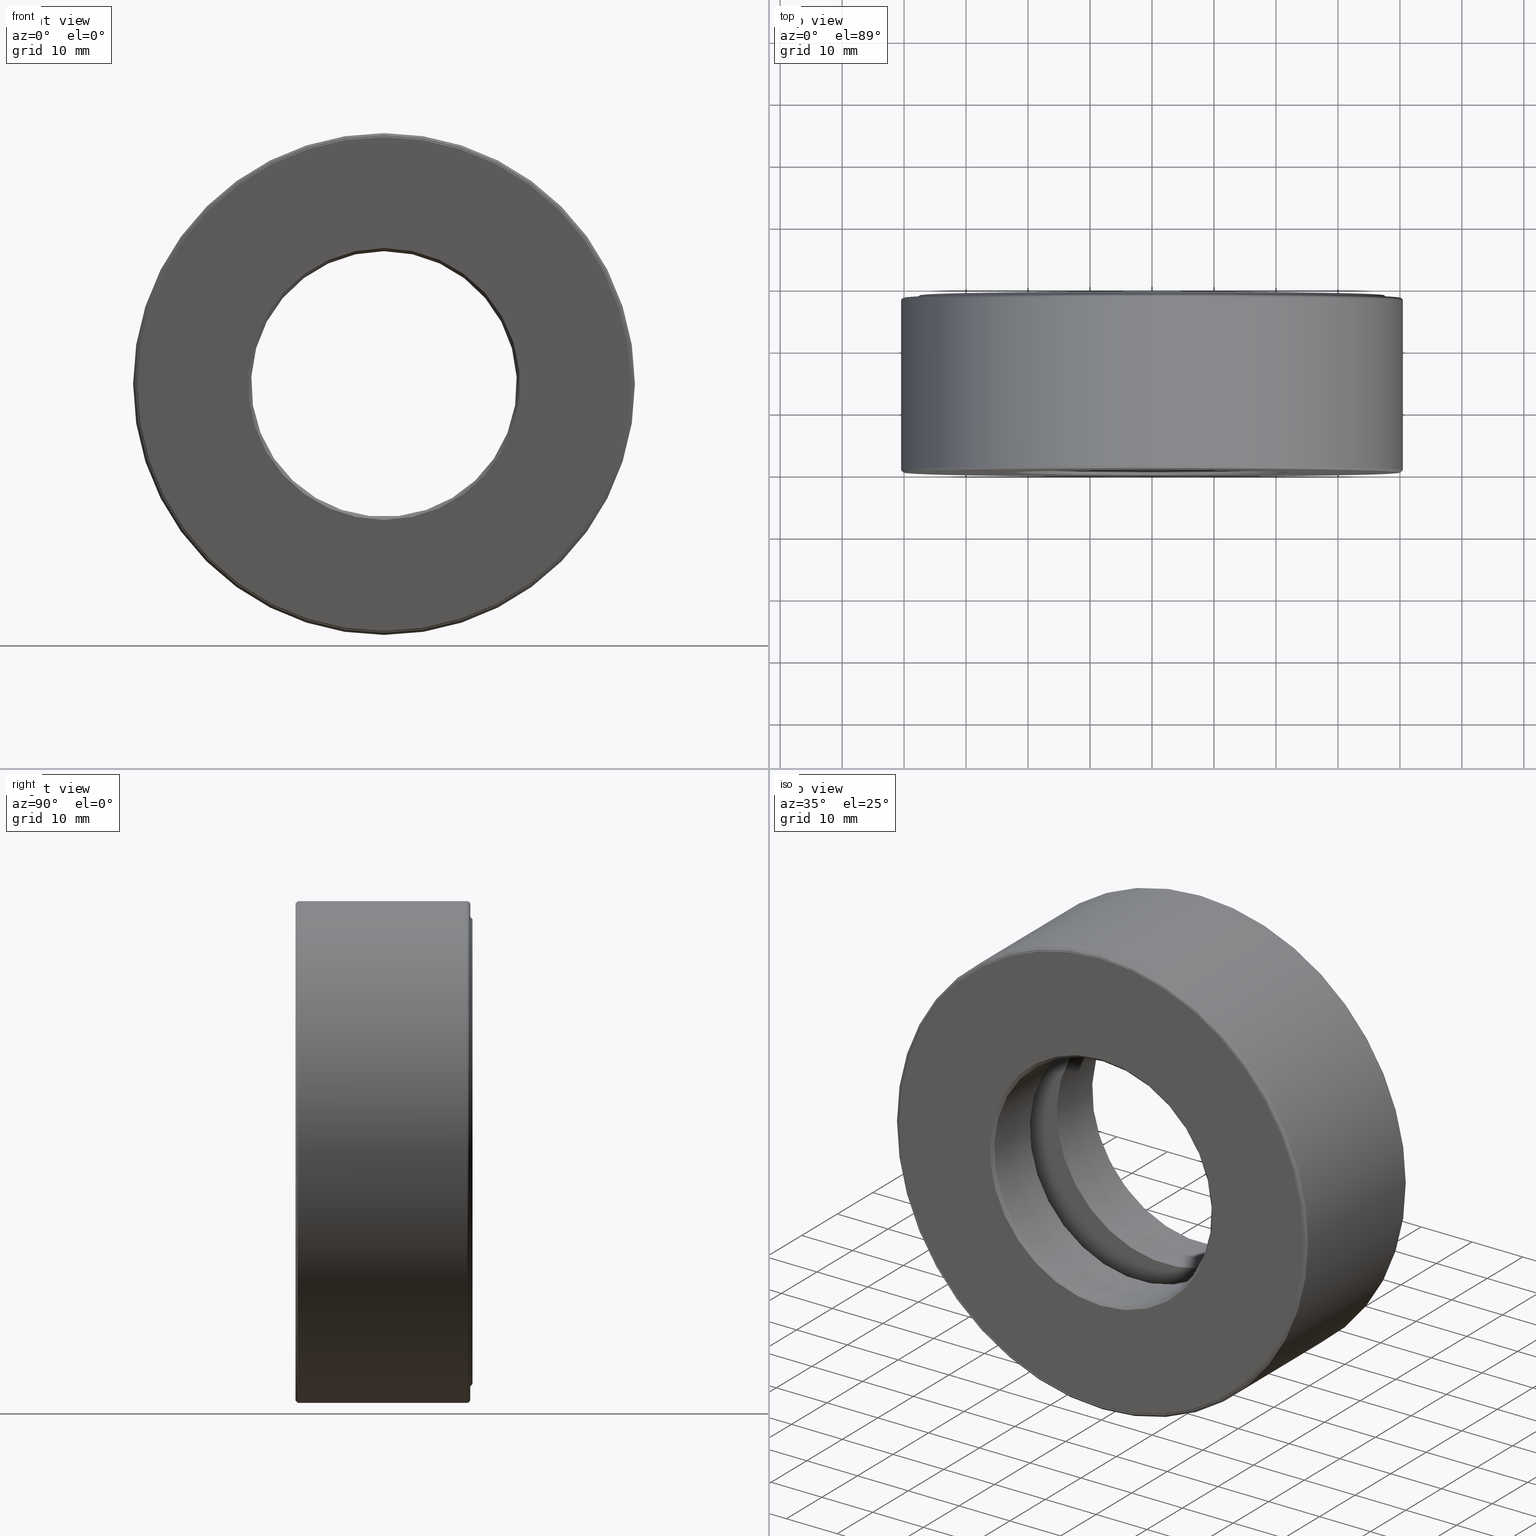
[diagram: canonical four-view strip — front | top / right | iso, engineering-drawing reading convention]
A machine part, canonical four-view strip (front | top / right | iso — engineering-drawing reading convention). The complete STEP part file that produces these views, byte-faithful:
ISO-10303-21;
HEADER;
FILE_DESCRIPTION (( 'STEP AP203' ),
    '1' );
FILE_NAME ('T-100-32.step',
    '2016-06-29T18:27:31',
    ( '' ),
    ( '' ),
    'SwSTEP 2.0',
    'SolidWorks 2016',
    '' );
FILE_SCHEMA (( 'CONFIG_CONTROL_DESIGN' ));
ENDSEC;

DATA;
#1 = DESIGN_CONTEXT ( 'detailed design', #104, 'design' ) ;
#2 = EDGE_LOOP ( 'NONE', ( #549 ) ) ;
#3 = EDGE_LOOP ( 'NONE', ( #139 ) ) ;
#4 = PLANE ( 'NONE',  #357 ) ;
#5 = CC_DESIGN_PERSON_AND_ORGANIZATION_ASSIGNMENT ( #410, #484, ( #561 ) ) ;
#6 = CIRCLE ( 'NONE', #118, 1.513749999999999900 ) ;
#7 = AXIS2_PLACEMENT_3D ( 'NONE', #240, #529, #338 ) ;
#8 = CARTESIAN_POINT ( 'NONE',  ( 0.0000000000000000000, -6.722907171908147400E-017, 0.0000000000000000000 ) ) ;
#9 = EDGE_LOOP ( 'NONE', ( #263 ) ) ;
#10 = CONICAL_SURFACE ( 'NONE', #541, 0.8437500000000000000, 0.7853981633974482800 ) ;
#11 = COORDINATED_UNIVERSAL_TIME_OFFSET ( 5, 0, .BEHIND. ) ;
#12 =( LENGTH_UNIT ( ) NAMED_UNIT ( * ) SI_UNIT ( $, .METRE. ) );
#13 = EDGE_CURVE ( 'NONE', #544, #544, #435, .T. ) ;
#14 = CARTESIAN_POINT ( 'NONE',  ( -4.774946175366597000E-016, 0.4125000000000000300, 0.0000000000000000000 ) ) ;
#15 =( NAMED_UNIT ( * ) PLANE_ANGLE_UNIT ( ) SI_UNIT ( $, .RADIAN. ) );
#16 = DIRECTION ( 'NONE',  ( -0.0000000000000000000, 1.000000000000000000, -0.0000000000000000000 ) ) ;
#17 = UNCERTAINTY_MEASURE_WITH_UNIT (LENGTH_MEASURE( 1.000000000000000100E-005 ), #439, 'distance_accuracy_value', 'NONE');
#18 = ORIENTED_EDGE ( 'NONE', *, *, #335, .T. ) ;
#19 =( GEOMETRIC_REPRESENTATION_CONTEXT ( 3 ) GLOBAL_UNCERTAINTY_ASSIGNED_CONTEXT ( ( #17 ) ) GLOBAL_UNIT_ASSIGNED_CONTEXT ( ( #439, #15, #432 ) ) REPRESENTATION_CONTEXT ( 'NONE', 'WORKASPACE' ) );
#20 = DIRECTION ( 'NONE',  ( 1.000000000000000000, 0.0000000000000000000, 0.0000000000000000000 ) ) ;
#21 = DIRECTION ( 'NONE',  ( 0.0000000000000000000, 0.0000000000000000000, 1.000000000000000000 ) ) ;
#22 = PERSON_AND_ORGANIZATION ( #324, #581 ) ;
#23 = DIRECTION ( 'NONE',  ( -0.0000000000000000000, 1.000000000000000000, -0.0000000000000000000 ) ) ;
#24 = EDGE_CURVE ( 'NONE', #386, #386, #399, .T. ) ;
#25 = CARTESIAN_POINT ( 'NONE',  ( 0.0000000000000000000, 1.109999999999999900, 0.0000000000000000000 ) ) ;
#26 = DIRECTION ( 'NONE',  ( -0.0000000000000000000, 1.000000000000000000, 0.0000000000000000000 ) ) ;
#27 = EDGE_LOOP ( 'NONE', ( #524 ) ) ;
#28 = DIRECTION ( 'NONE',  ( 0.0000000000000000000, 0.0000000000000000000, -1.000000000000000000 ) ) ;
#29 = PERSON_AND_ORGANIZATION ( #324, #581 ) ;
#30 = CARTESIAN_POINT ( 'NONE',  ( 0.0000000000000000000, -6.829619984160658000E-017, 0.0000000000000000000 ) ) ;
#31 = CARTESIAN_POINT ( 'NONE',  ( 0.0000000000000000000, 1.125000000000000000, 0.0000000000000000000 ) ) ;
#32 = AXIS2_PLACEMENT_3D ( 'NONE', #185, #383, #519 ) ;
#33 = ADVANCED_FACE ( 'NONE', ( #425, #162 ), #494, .F. ) ;
#34 = EDGE_LOOP ( 'NONE', ( #147 ) ) ;
#35 = VERTEX_POINT ( 'NONE', #575 ) ;
#36 = CARTESIAN_POINT ( 'NONE',  ( 0.0000000000000000000, 0.0000000000000000000, 0.0000000000000000000 ) ) ;
#37 = DATE_AND_TIME ( #454, #66 ) ;
#38 = ADVANCED_FACE ( 'NONE', ( ), #235, .T. ) ;
#39 = CARTESIAN_POINT ( 'NONE',  ( 0.0000000000000000000, -6.829619984160658000E-017, 0.0000000000000000000 ) ) ;
#40 = DIRECTION ( 'NONE',  ( 0.0000000000000000000, 0.0000000000000000000, 1.000000000000000000 ) ) ;
#41 = ADVANCED_FACE ( 'NONE', ( #371, #269 ), #203, .F. ) ;
#42 = EDGE_LOOP ( 'NONE', ( #234 ) ) ;
#43 = VERTEX_POINT ( 'NONE', #384 ) ;
#44 = FACE_OUTER_BOUND ( 'NONE', #9, .T. ) ;
#45 = ADVANCED_FACE ( 'NONE', ( #321, #538 ), #303, .F. ) ;
#46 = AXIS2_PLACEMENT_3D ( 'NONE', #293, #16, #21 ) ;
#47 = CARTESIAN_POINT ( 'NONE',  ( 0.0000000000000000000, 0.4125000000000002000, 0.0000000000000000000 ) ) ;
#48 = EDGE_CURVE ( 'NONE', #156, #156, #177, .T. ) ;
#49 = CLOSED_SHELL ( 'NONE', ( #174 ) ) ;
#50 = CIRCLE ( 'NONE', #489, 1.566749999999999600 ) ;
#51 = CALENDAR_DATE ( 2016, 29, 6 ) ;
#52 = DIRECTION ( 'NONE',  ( -0.0000000000000000000, 1.000000000000000000, 0.0000000000000000000 ) ) ;
#53 = AXIS2_PLACEMENT_3D ( 'NONE', #192, #530, #106 ) ;
#54 = CARTESIAN_POINT ( 'NONE',  ( 0.0000000000000000000, 0.4125000000000000900, 0.8437500000000000000 ) ) ;
#55 = CARTESIAN_POINT ( 'NONE',  ( 0.0000000000000000000, 1.109999999999999900, 1.513749999999999900 ) ) ;
#56 = EDGE_LOOP ( 'NONE', ( #316 ) ) ;
#57 = VERTEX_POINT ( 'NONE', #54 ) ;
#58 = EDGE_LOOP ( 'NONE', ( #493 ) ) ;
#59 = CYLINDRICAL_SURFACE ( 'NONE', #241, 0.8437500000000000000 ) ;
#60 = DIRECTION ( 'NONE',  ( 0.0000000000000000000, 0.0000000000000000000, 1.000000000000000000 ) ) ;
#61 = DIRECTION ( 'NONE',  ( 0.0000000000000000000, 0.0000000000000000000, 1.000000000000000000 ) ) ;
#62 = APPROVAL_STATUS ( 'not_yet_approved' ) ;
#63 = AXIS2_PLACEMENT_3D ( 'NONE', #407, #119, #594 ) ;
#64 = EDGE_LOOP ( 'NONE', ( #475 ) ) ;
#65 = VERTEX_POINT ( 'NONE', #154 ) ;
#66 = LOCAL_TIME ( 14, 27, 31.00000000000000000, #470 ) ;
#67 = DATE_TIME_ROLE ( 'creation_date' ) ;
#68 = APPROVAL ( #342, 'UNSPECIFIED' ) ;
#69 = CARTESIAN_POINT ( 'NONE',  ( -2.277076652131778000E-032, 5.335640612625514100E-019, 0.0000000000000000000 ) ) ;
#70 = DIRECTION ( 'NONE',  ( -0.0000000000000000000, 1.000000000000000000, 0.0000000000000000000 ) ) ;
#71 = EDGE_LOOP ( 'NONE', ( #211 ) ) ;
#72 = ORIENTED_EDGE ( 'NONE', *, *, #201, .F. ) ;
#73 = FACE_BOUND ( 'NONE', #603, .T. ) ;
#74 = DIRECTION ( 'NONE',  ( 0.0000000000000000000, 0.0000000000000000000, 1.000000000000000000 ) ) ;
#75 = AXIS2_PLACEMENT_3D ( 'NONE', #30, #163, #76 ) ;
#76 = DIRECTION ( 'NONE',  ( 0.0000000000000000000, 0.0000000000000000000, 1.000000000000000000 ) ) ;
#77 = CLOSED_SHELL ( 'NONE', ( #38 ) ) ;
#78 = FACE_OUTER_BOUND ( 'NONE', #339, .T. ) ;
#79 = APPROVAL_PERSON_ORGANIZATION ( #605, #110, #243 ) ;
#80 = DIRECTION ( 'NONE',  ( -0.0000000000000000000, 1.000000000000000000, -0.0000000000000000000 ) ) ;
#81 = DIRECTION ( 'NONE',  ( -0.0000000000000000000, 1.000000000000000000, -0.0000000000000000000 ) ) ;
#82 = DIMENSIONAL_EXPONENTS ( 1.000000000000000000, 0.0000000000000000000, 0.0000000000000000000, 0.0000000000000000000, 0.0000000000000000000, 0.0000000000000000000, 0.0000000000000000000 ) ;
#83 = AXIS2_PLACEMENT_3D ( 'NONE', #396, #70, #74 ) ;
#84 = ORIENTED_EDGE ( 'NONE', *, *, #13, .T. ) ;
#85 = VERTEX_POINT ( 'NONE', #196 ) ;
#86 = ORIENTED_EDGE ( 'NONE', *, *, #382, .F. ) ;
#87 = CIRCLE ( 'NONE', #562, 1.478749999999999600 ) ;
#88 = EDGE_CURVE ( 'NONE', #168, #168, #252, .T. ) ;
#89 = SECURITY_CLASSIFICATION ( '', '', #485 ) ;
#90 = DIRECTION ( 'NONE',  ( -0.0000000000000000000, 1.000000000000000000, -0.0000000000000000000 ) ) ;
#91 = FACE_OUTER_BOUND ( 'NONE', #132, .T. ) ;
#92 = EDGE_LOOP ( 'NONE', ( #155 ) ) ;
#93 = FACE_OUTER_BOUND ( 'NONE', #443, .T. ) ;
#94 = PERSON_AND_ORGANIZATION ( #324, #581 ) ;
#95 = AXIS2_PLACEMENT_3D ( 'NONE', #36, #258, #412 ) ;
#96 = CARTESIAN_POINT ( 'NONE',  ( 0.0000000000000000000, 0.7125000000000000200, 0.0000000000000000000 ) ) ;
#97 = EDGE_LOOP ( 'NONE', ( #597 ) ) ;
#98 = VERTEX_POINT ( 'NONE', #334 ) ;
#99 = CARTESIAN_POINT ( 'NONE',  ( 0.0000000000000000000, 0.7125000000000000200, 0.0000000000000000000 ) ) ;
#100 = PERSON_AND_ORGANIZATION_ROLE ( 'classification_officer' ) ;
#101 = FACE_OUTER_BOUND ( 'NONE', #224, .T. ) ;
#102 = FACE_BOUND ( 'NONE', #3, .T. ) ;
#103 = CARTESIAN_POINT ( 'NONE',  ( 0.0000000000000000000, -6.722907171908147400E-017, 1.568749999999999400 ) ) ;
#104 = APPLICATION_CONTEXT ( 'configuration controlled 3d designs of mechanical parts and assemblies' ) ;
#105 = AXIS2_PLACEMENT_3D ( 'NONE', #398, #584, #28 ) ;
#106 = DIRECTION ( 'NONE',  ( 0.0000000000000000000, 0.0000000000000000000, 1.000000000000000000 ) ) ;
#107 = ORIENTED_EDGE ( 'NONE', *, *, #229, .F. ) ;
#108 = TOROIDAL_SURFACE ( 'NONE', #320, 1.314749999999999600, 0.2499999999999999200 ) ;
#109 = CARTESIAN_POINT ( 'NONE',  ( 0.0000000000000000000, 1.104999999999999800, 0.0000000000000000000 ) ) ;
#110 = APPROVAL ( #534, 'UNSPECIFIED' ) ;
#111 = PRODUCT_DEFINITION_SHAPE ( 'NONE', 'NONE',  #341 ) ;
#112 = DIRECTION ( 'NONE',  ( 1.047444401652940000E-014, 0.0000000000000000000, 1.000000000000000000 ) ) ;
#113 = FACE_OUTER_BOUND ( 'NONE', #56, .T. ) ;
#114 = EDGE_LOOP ( 'NONE', ( #72 ) ) ;
#115 = TOROIDAL_SURFACE ( 'NONE', #153, 1.573749999999999800, 0.02000000000000005900 ) ;
#116 = COORDINATED_UNIVERSAL_TIME_OFFSET ( 5, 0, .BEHIND. ) ;
#117 = ADVANCED_FACE ( 'NONE', ( #73, #131 ), #434, .F. ) ;
#118 = AXIS2_PLACEMENT_3D ( 'NONE', #250, #576, #490 ) ;
#119 = DIRECTION ( 'NONE',  ( -0.0000000000000000000, 1.000000000000000000, -0.0000000000000000000 ) ) ;
#120 = MANIFOLD_SOLID_BREP ( 'Revolve2[1]', #467 ) ;
#121 = ADVANCED_FACE ( 'NONE', ( ), #481, .T. ) ;
#122 = DIRECTION ( 'NONE',  ( -0.0000000000000000000, 1.000000000000000000, -0.0000000000000000000 ) ) ;
#123 = ORIENTED_EDGE ( 'NONE', *, *, #413, .F. ) ;
#124 = VERTEX_POINT ( 'NONE', #230 ) ;
#125 = EDGE_LOOP ( 'NONE', ( #86 ) ) ;
#126 = DIRECTION ( 'NONE',  ( 0.0000000000000000000, 0.0000000000000000000, 1.000000000000000000 ) ) ;
#127 = ADVANCED_FACE ( 'NONE', ( #525, #102 ), #10, .F. ) ;
#128 = PLANE ( 'NONE',  #312 ) ;
#129 = DIRECTION ( 'NONE',  ( 0.0000000000000000000, 0.0000000000000000000, 1.000000000000000000 ) ) ;
#130 = MANIFOLD_SOLID_BREP ( 'BALLS[2]', #77 ) ;
#131 = FACE_OUTER_BOUND ( 'NONE', #205, .T. ) ;
#132 = EDGE_LOOP ( 'NONE', ( #365 ) ) ;
#133 = CIRCLE ( 'NONE', #606, 0.8637500000000000200 ) ;
#134 = ADVANCED_FACE ( 'NONE', ( #385, #604 ), #115, .T. ) ;
#135 = APPROVAL_DATE_TIME ( #37, #68 ) ;
#136 = CARTESIAN_POINT ( 'NONE',  ( 0.0000000000000000000, 0.4125000000000000300, 0.0000000000000000000 ) ) ;
#137 = DIRECTION ( 'NONE',  ( -0.0000000000000000000, 1.000000000000000000, 0.0000000000000000000 ) ) ;
#138 = DIRECTION ( 'NONE',  ( -0.0000000000000000000, 1.000000000000000000, -0.0000000000000000000 ) ) ;
#139 = ORIENTED_EDGE ( 'NONE', *, *, #335, .F. ) ;
#140 = FACE_BOUND ( 'NONE', #348, .T. ) ;
#141 = EDGE_LOOP ( 'NONE', ( #246 ) ) ;
#142 = CARTESIAN_POINT ( 'NONE',  ( 0.0000000000000000000, 1.109999999999999900, 1.573749999999999800 ) ) ;
#143 = AXIS2_PLACEMENT_3D ( 'NONE', #152, #343, #440 ) ;
#144 = CARTESIAN_POINT ( 'NONE',  ( 0.0000000000000000000, 0.7124999999999998000, 1.514749999999999800 ) ) ;
#145 = CARTESIAN_POINT ( 'NONE',  ( 0.0000000000000000000, 0.7124999999999998000, 1.114749999999999700 ) ) ;
#146 = CC_DESIGN_APPROVAL ( #110, ( #89 ) ) ;
#147 = ORIENTED_EDGE ( 'NONE', *, *, #236, .T. ) ;
#148 = SHAPE_DEFINITION_REPRESENTATION ( #111, #361 ) ;
#149 = PLANE ( 'NONE',  #32 ) ;
#150 = CONICAL_SURFACE ( 'NONE', #75, 1.578749999999999900, 0.7853981633974324000 ) ;
#151 = CARTESIAN_POINT ( 'NONE',  ( 0.0000000000000000000, 0.4125000000000002000, 1.114749999999999700 ) ) ;
#152 = CARTESIAN_POINT ( 'NONE',  ( 0.0000000000000000000, 0.0000000000000000000, 0.0000000000000000000 ) ) ;
#153 = AXIS2_PLACEMENT_3D ( 'NONE', #403, #539, #301 ) ;
#154 = CARTESIAN_POINT ( 'NONE',  ( 0.0000000000000000000, 1.089999999999999900, 1.593750000000000000 ) ) ;
#155 = ORIENTED_EDGE ( 'NONE', *, *, #248, .T. ) ;
#156 = VERTEX_POINT ( 'NONE', #478 ) ;
#157 = DIRECTION ( 'NONE',  ( 0.0000000000000000000, 0.0000000000000000000, 1.000000000000000000 ) ) ;
#158 = DATE_AND_TIME ( #51, #295 ) ;
#159 = VERTEX_POINT ( 'NONE', #144 ) ;
#160 = PLANE ( 'NONE',  #571 ) ;
#161 = EDGE_LOOP ( 'NONE', ( #595 ) ) ;
#162 = FACE_OUTER_BOUND ( 'NONE', #299, .T. ) ;
#163 = DIRECTION ( 'NONE',  ( -0.0000000000000000000, 1.000000000000000000, -0.0000000000000000000 ) ) ;
#164 = AXIS2_PLACEMENT_3D ( 'NONE', #209, #122, #207 ) ;
#165 = ADVANCED_FACE ( 'NONE', ( #340, #254 ), #150, .T. ) ;
#166 = DIRECTION ( 'NONE',  ( -0.0000000000000000000, 1.000000000000000000, -0.0000000000000000000 ) ) ;
#167 = ORIENTED_EDGE ( 'NONE', *, *, #512, .T. ) ;
#168 = VERTEX_POINT ( 'NONE', #142 ) ;
#169 = CARTESIAN_POINT ( 'NONE',  ( 0.0000000000000000000, 0.5624999999999998900, 0.0000000000000000000 ) ) ;
#170 = ADVANCED_FACE ( 'NONE', ( #91, #356 ), #160, .F. ) ;
#171 = DATE_AND_TIME ( #311, #255 ) ;
#172 = ADVANCED_FACE ( 'NONE', ( #93, #373 ), #59, .F. ) ;
#173 = EDGE_LOOP ( 'NONE', ( #226 ) ) ;
#174 = ADVANCED_FACE ( 'NONE', ( ), #568, .T. ) ;
#175 = FACE_OUTER_BOUND ( 'NONE', #71, .T. ) ;
#176 = CLOSED_SHELL ( 'NONE', ( #121 ) ) ;
#177 = CIRCLE ( 'NONE', #46, 0.8637500000000001300 ) ;
#178 = CARTESIAN_POINT ( 'NONE',  ( 4.590425090244008900E-015, 0.5624999999999998900, 1.314749999999999600 ) ) ;
#179 = DIRECTION ( 'NONE',  ( 0.0000000000000000000, 0.0000000000000000000, 1.000000000000000000 ) ) ;
#180 = ORIENTED_EDGE ( 'NONE', *, *, #248, .F. ) ;
#181 = FACE_OUTER_BOUND ( 'NONE', #379, .T. ) ;
#182 = DIRECTION ( 'NONE',  ( 0.0000000000000000000, 0.0000000000000000000, 1.000000000000000000 ) ) ;
#183 = AXIS2_PLACEMENT_3D ( 'NONE', #350, #586, #486 ) ;
#184 = CARTESIAN_POINT ( 'NONE',  ( 0.0000000000000000000, 1.125000000000000000, 0.0000000000000000000 ) ) ;
#185 = CARTESIAN_POINT ( 'NONE',  ( 1.039563927478330000E-016, 0.4125000000000002000, 0.0000000000000000000 ) ) ;
#186 = ORIENTED_EDGE ( 'NONE', *, *, #48, .T. ) ;
#187 = ORIENTED_EDGE ( 'NONE', *, *, #313, .T. ) ;
#188 = CIRCLE ( 'NONE', #491, 1.514749999999999800 ) ;
#189 = DIRECTION ( 'NONE',  ( 0.0000000000000000000, 0.0000000000000000000, -1.000000000000000000 ) ) ;
#190 = AXIS2_PLACEMENT_3D ( 'NONE', #47, #323, #222 ) ;
#191 = CARTESIAN_POINT ( 'NONE',  ( 0.0000000000000000000, 1.089999999999999900, 1.573749999999999800 ) ) ;
#192 = CARTESIAN_POINT ( 'NONE',  ( 0.0000000000000000000, 1.109999999999999900, 0.0000000000000000000 ) ) ;
#193 = EDGE_LOOP ( 'NONE', ( #180 ) ) ;
#194 = APPLICATION_PROTOCOL_DEFINITION ( 'international standard', 'config_control_design', 1994, #345 ) ;
#195 = PRODUCT_DEFINITION_FORMATION_WITH_SPECIFIED_SOURCE ( 'ANY', '', #561, .NOT_KNOWN. ) ;
#196 = CARTESIAN_POINT ( 'NONE',  ( 0.0000000000000000000, 1.037000000000000400, 1.566749999999999600 ) ) ;
#197 = CARTESIAN_POINT ( 'NONE',  ( 0.0000000000000000000, 6.829619984160658000E-017, 0.0000000000000000000 ) ) ;
#198 = DIRECTION ( 'NONE',  ( 0.0000000000000000000, 0.0000000000000000000, -1.000000000000000000 ) ) ;
#199 = EDGE_LOOP ( 'NONE', ( #278 ) ) ;
#200 = FACE_OUTER_BOUND ( 'NONE', #330, .T. ) ;
#201 = EDGE_CURVE ( 'NONE', #417, #417, #133, .T. ) ;
#202 = DIRECTION ( 'NONE',  ( 1.000000000000000000, 0.0000000000000000000, -1.047444401652940000E-014 ) ) ;
#203 = CYLINDRICAL_SURFACE ( 'NONE', #143, 1.573750000000000200 ) ;
#204 = DIRECTION ( 'NONE',  ( -0.0000000000000000000, 1.000000000000000000, -0.0000000000000000000 ) ) ;
#205 = EDGE_LOOP ( 'NONE', ( #405 ) ) ;
#206 = CIRCLE ( 'NONE', #520, 1.573750000000000200 ) ;
#207 = DIRECTION ( 'NONE',  ( 0.0000000000000000000, 0.0000000000000000000, 1.000000000000000000 ) ) ;
#208 = AXIS2_PLACEMENT_3D ( 'NONE', #362, #547, #414 ) ;
#209 = CARTESIAN_POINT ( 'NONE',  ( 0.0000000000000000000, 0.0000000000000000000, 0.0000000000000000000 ) ) ;
#210 = EDGE_CURVE ( 'NONE', #349, #349, #6, .T. ) ;
#211 = ORIENTED_EDGE ( 'NONE', *, *, #333, .T. ) ;
#212 = CC_DESIGN_DATE_AND_TIME_ASSIGNMENT ( #247, #344, ( #89 ) ) ;
#213 = FACE_BOUND ( 'NONE', #141, .T. ) ;
#214 = DIRECTION ( 'NONE',  ( 0.0000000000000000000, -1.000000000000000000, 0.0000000000000000000 ) ) ;
#215 = ADVANCED_FACE ( 'NONE', ( #200, #418 ), #306, .F. ) ;
#216 = DIRECTION ( 'NONE',  ( 0.0000000000000000000, 0.0000000000000000000, 1.000000000000000000 ) ) ;
#217 = FACE_BOUND ( 'NONE', #302, .T. ) ;
#218 = AXIS2_PLACEMENT_3D ( 'NONE', #8, #527, #285 ) ;
#219 = EDGE_LOOP ( 'NONE', ( #543 ) ) ;
#220 = FACE_OUTER_BOUND ( 'NONE', #393, .T. ) ;
#221 = DIRECTION ( 'NONE',  ( 0.0000000000000000000, 0.0000000000000000000, 1.000000000000000000 ) ) ;
#222 = DIRECTION ( 'NONE',  ( 0.0000000000000000000, 0.0000000000000000000, 1.000000000000000000 ) ) ;
#223 = CC_DESIGN_APPROVAL ( #68, ( #195 ) ) ;
#224 = EDGE_LOOP ( 'NONE', ( #363 ) ) ;
#225 = CIRCLE ( 'NONE', #499, 0.8437500000000000000 ) ;
#226 = ORIENTED_EDGE ( 'NONE', *, *, #268, .F. ) ;
#227 = LOCAL_TIME ( 14, 27, 31.00000000000000000, #11 ) ;
#228 = DIRECTION ( 'NONE',  ( -0.0000000000000000000, 1.000000000000000000, -0.0000000000000000000 ) ) ;
#229 = EDGE_CURVE ( 'NONE', #124, #124, #451, .T. ) ;
#230 = CARTESIAN_POINT ( 'NONE',  ( 0.0000000000000000000, 0.02000000000000033300, 0.8437499999999998900 ) ) ;
#231 = MANIFOLD_SOLID_BREP ( 'Revolve2[2]', #550 ) ;
#232 = CARTESIAN_POINT ( 'NONE',  ( 0.0000000000000000000, 1.037000000000000400, 0.0000000000000000000 ) ) ;
#233 = CIRCLE ( 'NONE', #378, 1.514749999999999800 ) ;
#234 = ORIENTED_EDGE ( 'NONE', *, *, #281, .T. ) ;
#235 = SPHERICAL_SURFACE ( 'NONE', #7, 0.2500000000000000000 ) ;
#236 = EDGE_CURVE ( 'NONE', #57, #57, #331, .T. ) ;
#237 = DIRECTION ( 'NONE',  ( -0.0000000000000000000, 1.000000000000000000, -0.0000000000000000000 ) ) ;
#238 = COORDINATED_UNIVERSAL_TIME_OFFSET ( 5, 0, .BEHIND. ) ;
#239 = PERSON_AND_ORGANIZATION_ROLE ( 'creator' ) ;
#240 = CARTESIAN_POINT ( 'NONE',  ( 1.314749999999999600, 0.5624999999999998900, -9.180850180488017800E-015 ) ) ;
#241 = AXIS2_PLACEMENT_3D ( 'NONE', #245, #535, #488 ) ;
#242 = DIRECTION ( 'NONE',  ( 0.0000000000000000000, 0.0000000000000000000, 1.000000000000000000 ) ) ;
#243 = APPROVAL_ROLE ( '' ) ;
#244 = EDGE_LOOP ( 'NONE', ( #507 ) ) ;
#245 = CARTESIAN_POINT ( 'NONE',  ( 0.0000000000000000000, 0.0000000000000000000, 0.0000000000000000000 ) ) ;
#246 = ORIENTED_EDGE ( 'NONE', *, *, #304, .F. ) ;
#247 = DATE_AND_TIME ( #503, #227 ) ;
#248 = EDGE_CURVE ( 'NONE', #159, #159, #233, .T. ) ;
#249 = CARTESIAN_POINT ( 'NONE',  ( 0.0000000000000000000, 0.7125000000000000200, 0.8437500000000000000 ) ) ;
#250 = CARTESIAN_POINT ( 'NONE',  ( 0.0000000000000000000, 1.089999999999999900, 0.0000000000000000000 ) ) ;
#251 = CARTESIAN_POINT ( 'NONE',  ( -1.314749999999999600, 0.5624999999999998900, 0.0000000000000000000 ) ) ;
#252 = CIRCLE ( 'NONE', #582, 1.573749999999999800 ) ;
#253 = ORIENTED_EDGE ( 'NONE', *, *, #236, .F. ) ;
#254 = FACE_BOUND ( 'NONE', #219, .T. ) ;
#255 = LOCAL_TIME ( 14, 27, 31.00000000000000000, #238 ) ;
#256 = AXIS2_PLACEMENT_3D ( 'NONE', #502, #81, #546 ) ;
#257 = DIRECTION ( 'NONE',  ( -0.0000000000000000000, 1.000000000000000000, -0.0000000000000000000 ) ) ;
#258 = DIRECTION ( 'NONE',  ( -0.0000000000000000000, 1.000000000000000000, -0.0000000000000000000 ) ) ;
#259 = ADVANCED_FACE ( 'NONE', ( #508, #587 ), #402, .F. ) ;
#260 = CC_DESIGN_PERSON_AND_ORGANIZATION_ASSIGNMENT ( #29, #292, ( #195 ) ) ;
#261 = ORIENTED_EDGE ( 'NONE', *, *, #370, .T. ) ;
#262 = VERTEX_POINT ( 'NONE', #395 ) ;
#263 = ORIENTED_EDGE ( 'NONE', *, *, #24, .F. ) ;
#264 = ADVANCED_FACE ( 'NONE', ( #220, #113 ), #479, .T. ) ;
#265 = AXIS2_PLACEMENT_3D ( 'NONE', #446, #352, #347 ) ;
#266 = CARTESIAN_POINT ( 'NONE',  ( 0.0000000000000000000, 1.104999999999999800, 0.0000000000000000000 ) ) ;
#267 = ADVANCED_FACE ( 'NONE', ( #565, #466 ), #468, .F. ) ;
#268 = EDGE_CURVE ( 'NONE', #537, #537, #551, .T. ) ;
#269 = FACE_OUTER_BOUND ( 'NONE', #517, .T. ) ;
#270 = VERTEX_POINT ( 'NONE', #249 ) ;
#271 = CIRCLE ( 'NONE', #208, 1.593749999999999300 ) ;
#272 = CARTESIAN_POINT ( 'NONE',  ( 1.871578553351712000E-015, 0.7124999999999998000, 0.0000000000000000000 ) ) ;
#273 = APPROVAL_PERSON_ORGANIZATION ( #518, #376, #572 ) ;
#274 = EDGE_CURVE ( 'NONE', #279, #279, #588, .T. ) ;
#275 = DIRECTION ( 'NONE',  ( -0.0000000000000000000, 1.000000000000000000, -0.0000000000000000000 ) ) ;
#276 = DIRECTION ( 'NONE',  ( 0.0000000000000000000, 0.0000000000000000000, 1.000000000000000000 ) ) ;
#277 = AXIS2_PLACEMENT_3D ( 'NONE', #465, #552, #216 ) ;
#278 = ORIENTED_EDGE ( 'NONE', *, *, #496, .T. ) ;
#279 = VERTEX_POINT ( 'NONE', #566 ) ;
#280 = DIRECTION ( 'NONE',  ( 0.0000000000000000000, 0.0000000000000000000, 1.000000000000000000 ) ) ;
#281 = EDGE_CURVE ( 'NONE', #98, #98, #206, .T. ) ;
#282 = MANIFOLD_SOLID_BREP ( 'BALLS[1]', #536 ) ;
#283 = EDGE_LOOP ( 'NONE', ( #186 ) ) ;
#284 = FACE_OUTER_BOUND ( 'NONE', #125, .T. ) ;
#285 = DIRECTION ( 'NONE',  ( 0.0000000000000000000, 0.0000000000000000000, 1.000000000000000000 ) ) ;
#286 = ORIENTED_EDGE ( 'NONE', *, *, #88, .T. ) ;
#287 = FACE_OUTER_BOUND ( 'NONE', #193, .T. ) ;
#288 = AXIS2_PLACEMENT_3D ( 'NONE', #583, #202, #112 ) ;
#289 = CARTESIAN_POINT ( 'NONE',  ( 0.0000000000000000000, 0.4125000000000000300, 1.573749999999999800 ) ) ;
#290 = ORIENTED_EDGE ( 'NONE', *, *, #370, .F. ) ;
#291 = VERTEX_POINT ( 'NONE', #289 ) ;
#292 = PERSON_AND_ORGANIZATION_ROLE ( 'design_supplier' ) ;
#293 = CARTESIAN_POINT ( 'NONE',  ( 0.0000000000000000000, 1.124999999999999800, 0.0000000000000000000 ) ) ;
#294 = CC_DESIGN_PERSON_AND_ORGANIZATION_ASSIGNMENT ( #482, #100, ( #89 ) ) ;
#295 = LOCAL_TIME ( 14, 27, 31.00000000000000000, #116 ) ;
#296 = DIRECTION ( 'NONE',  ( 0.0000000000000000000, -0.0000000000000000000, -1.000000000000000000 ) ) ;
#297 = AXIS2_PLACEMENT_3D ( 'NONE', #360, #447, #404 ) ;
#298 = DIRECTION ( 'NONE',  ( -0.0000000000000000000, 1.000000000000000000, -0.0000000000000000000 ) ) ;
#299 = EDGE_LOOP ( 'NONE', ( #84 ) ) ;
#300 = FACE_BOUND ( 'NONE', #27, .T. ) ;
#301 = DIRECTION ( 'NONE',  ( 0.0000000000000000000, 0.0000000000000000000, 1.000000000000000000 ) ) ;
#302 = EDGE_LOOP ( 'NONE', ( #392 ) ) ;
#303 = CYLINDRICAL_SURFACE ( 'NONE', #548, 1.573750000000000200 ) ;
#304 = EDGE_CURVE ( 'NONE', #43, #43, #87, .T. ) ;
#305 = DIRECTION ( 'NONE',  ( -0.0000000000000000000, 1.000000000000000000, -0.0000000000000000000 ) ) ;
#306 = PLANE ( 'NONE',  #83 ) ;
#307 = CARTESIAN_POINT ( 'NONE',  ( 0.0000000000000000000, 0.7124999999999998000, 0.0000000000000000000 ) ) ;
#308 = DIRECTION ( 'NONE',  ( 0.0000000000000000000, 0.0000000000000000000, 1.000000000000000000 ) ) ;
#309 = ORIENTED_EDGE ( 'NONE', *, *, #13, .F. ) ;
#310 = CIRCLE ( 'NONE', #218, 1.568749999999999400 ) ;
#311 = CALENDAR_DATE ( 2016, 29, 6 ) ;
#312 = AXIS2_PLACEMENT_3D ( 'NONE', #272, #471, #461 ) ;
#313 = EDGE_CURVE ( 'NONE', #65, #65, #448, .T. ) ;
#314 = EDGE_LOOP ( 'NONE', ( #458 ) ) ;
#315 = FACE_OUTER_BOUND ( 'NONE', #2, .T. ) ;
#316 = ORIENTED_EDGE ( 'NONE', *, *, #512, .F. ) ;
#317 = FACE_BOUND ( 'NONE', #199, .T. ) ;
#318 = DIRECTION ( 'NONE',  ( -0.0000000000000000000, 1.000000000000000000, -0.0000000000000000000 ) ) ;
#319 = ADVANCED_FACE ( 'NONE', ( #429, #287 ), #602, .F. ) ;
#320 = AXIS2_PLACEMENT_3D ( 'NONE', #423, #430, #61 ) ;
#321 = FACE_OUTER_BOUND ( 'NONE', #173, .T. ) ;
#322 = LENGTH_MEASURE_WITH_UNIT ( LENGTH_MEASURE( 0.02539999999999999900 ), #12 );
#323 = DIRECTION ( 'NONE',  ( -0.0000000000000000000, 1.000000000000000000, -0.0000000000000000000 ) ) ;
#324 = PERSON ( 'UNSPECIFIED', 'UNSPECIFIED', 'UNSPECIFIED', ('UNSPECIFIED'), ('UNSPECIFIED'), ('UNSPECIFIED') ) ;
#325 = DIRECTION ( 'NONE',  ( -0.0000000000000000000, 1.000000000000000000, -0.0000000000000000000 ) ) ;
#326 = CARTESIAN_POINT ( 'NONE',  ( -8.058413836519987000E-033, -6.805547074365413900E-017, 0.0000000000000000000 ) ) ;
#327 = AXIS2_PLACEMENT_3D ( 'NONE', #567, #23, #157 ) ;
#328 = ORIENTED_EDGE ( 'NONE', *, *, #201, .T. ) ;
#329 = VERTEX_POINT ( 'NONE', #103 ) ;
#330 = EDGE_LOOP ( 'NONE', ( #290 ) ) ;
#331 = CIRCLE ( 'NONE', #265, 0.8437500000000000000 ) ;
#332 = DIRECTION ( 'NONE',  ( 0.0000000000000000000, 0.0000000000000000000, 1.000000000000000000 ) ) ;
#333 = EDGE_CURVE ( 'NONE', #474, #474, #271, .T. ) ;
#334 = CARTESIAN_POINT ( 'NONE',  ( 0.0000000000000000000, 0.005000000000000232600, 1.573750000000000200 ) ) ;
#335 = EDGE_CURVE ( 'NONE', #515, #515, #492, .T. ) ;
#336 = CIRCLE ( 'NONE', #585, 1.573749999999999800 ) ;
#337 = MECHANICAL_CONTEXT ( 'NONE', #345, 'mechanical' ) ;
#338 = DIRECTION ( 'NONE',  ( -1.000000000000000000, 0.0000000000000000000, 6.982962677686265100E-015 ) ) ;
#339 = EDGE_LOOP ( 'NONE', ( #514 ) ) ;
#340 = FACE_OUTER_BOUND ( 'NONE', #441, .T. ) ;
#341 = PRODUCT_DEFINITION ( 'UNKNOWN', '', #195, #1 ) ;
#342 = APPROVAL_STATUS ( 'not_yet_approved' ) ;
#343 = DIRECTION ( 'NONE',  ( -0.0000000000000000000, 1.000000000000000000, -0.0000000000000000000 ) ) ;
#344 = DATE_TIME_ROLE ( 'classification_date' ) ;
#345 = APPLICATION_CONTEXT ( 'configuration controlled 3d designs of mechanical parts and assemblies' ) ;
#346 = DIRECTION ( 'NONE',  ( 0.0000000000000000000, 0.0000000000000000000, 1.000000000000000000 ) ) ;
#347 = DIRECTION ( 'NONE',  ( 0.0000000000000000000, 0.0000000000000000000, 1.000000000000000000 ) ) ;
#348 = EDGE_LOOP ( 'NONE', ( #253 ) ) ;
#349 = VERTEX_POINT ( 'NONE', #516 ) ;
#350 = CARTESIAN_POINT ( 'NONE',  ( 0.0000000000000000000, 0.02000000000000033300, 0.0000000000000000000 ) ) ;
#351 = DIRECTION ( 'NONE',  ( 0.0000000000000000000, 0.0000000000000000000, 1.000000000000000000 ) ) ;
#352 = DIRECTION ( 'NONE',  ( -0.0000000000000000000, 1.000000000000000000, -0.0000000000000000000 ) ) ;
#353 = FACE_OUTER_BOUND ( 'NONE', #416, .T. ) ;
#354 = DIRECTION ( 'NONE',  ( 1.000000000000000000, 0.0000000000000000000, 0.0000000000000000000 ) ) ;
#355 = ORIENTED_EDGE ( 'NONE', *, *, #48, .F. ) ;
#356 = FACE_BOUND ( 'NONE', #487, .T. ) ;
#357 = AXIS2_PLACEMENT_3D ( 'NONE', #326, #52, #422 ) ;
#358 = DIRECTION ( 'NONE',  ( 0.0000000000000000000, 0.0000000000000000000, 1.000000000000000000 ) ) ;
#359 = ADVANCED_FACE ( 'NONE', ( #570, #353 ), #591, .F. ) ;
#360 = CARTESIAN_POINT ( 'NONE',  ( 0.0000000000000000000, 1.109999999999999900, 0.0000000000000000000 ) ) ;
#361 = ADVANCED_BREP_SHAPE_REPRESENTATION ( 'T-100-32', ( #120, #231, #472, #282, #130, #462, #509 ), #19 ) ;
#362 = CARTESIAN_POINT ( 'NONE',  ( 0.0000000000000000000, 0.01499999999999984000, 0.0000000000000000000 ) ) ;
#363 = ORIENTED_EDGE ( 'NONE', *, *, #281, .F. ) ;
#364 = FACE_OUTER_BOUND ( 'NONE', #563, .T. ) ;
#365 = ORIENTED_EDGE ( 'NONE', *, *, #496, .F. ) ;
#366 = CARTESIAN_POINT ( 'NONE',  ( 0.0000000000000000000, 1.089999999999999900, 0.0000000000000000000 ) ) ;
#367 = ADVANCED_FACE ( 'NONE', ( #217, #44 ), #593, .T. ) ;
#368 = AXIS2_PLACEMENT_3D ( 'NONE', #251, #198, #354 ) ;
#369 = DIRECTION ( 'NONE',  ( 0.0000000000000000000, -0.0000000000000000000, -1.000000000000000000 ) ) ;
#370 = EDGE_CURVE ( 'NONE', #523, #523, #336, .T. ) ;
#371 = FACE_OUTER_BOUND ( 'NONE', #505, .T. ) ;
#372 = ORIENTED_EDGE ( 'NONE', *, *, #229, .T. ) ;
#373 = FACE_OUTER_BOUND ( 'NONE', #473, .T. ) ;
#374 = PERSON_AND_ORGANIZATION ( #324, #581 ) ;
#375 = CC_DESIGN_DATE_AND_TIME_ASSIGNMENT ( #158, #67, ( #341 ) ) ;
#376 = APPROVAL ( #62, 'UNSPECIFIED' ) ;
#377 = DIRECTION ( 'NONE',  ( -3.491481338843132600E-015, 0.0000000000000000000, -1.000000000000000000 ) ) ;
#378 = AXIS2_PLACEMENT_3D ( 'NONE', #307, #257, #358 ) ;
#379 = EDGE_LOOP ( 'NONE', ( #450 ) ) ;
#380 = VERTEX_POINT ( 'NONE', #151 ) ;
#381 = DIRECTION ( 'NONE',  ( 0.0000000000000000000, -1.000000000000000000, 0.0000000000000000000 ) ) ;
#382 = EDGE_CURVE ( 'NONE', #380, #380, #444, .T. ) ;
#383 = DIRECTION ( 'NONE',  ( 0.0000000000000000000, -1.000000000000000000, 0.0000000000000000000 ) ) ;
#384 = CARTESIAN_POINT ( 'NONE',  ( 0.0000000000000000000, 1.125000000000000000, 1.478749999999999600 ) ) ;
#385 = FACE_OUTER_BOUND ( 'NONE', #578, .T. ) ;
#386 = VERTEX_POINT ( 'NONE', #145 ) ;
#387 = ORIENTED_EDGE ( 'NONE', *, *, #333, .F. ) ;
#388 = CIRCLE ( 'NONE', #459, 1.573749999999999800 ) ;
#389 = AXIS2_PLACEMENT_3D ( 'NONE', #184, #381, #189 ) ;
#390 = APPROVAL_ROLE ( '' ) ;
#391 = CARTESIAN_POINT ( 'NONE',  ( 0.0000000000000000000, 0.01499999999999984000, 1.593749999999999300 ) ) ;
#392 = ORIENTED_EDGE ( 'NONE', *, *, #476, .T. ) ;
#393 = EDGE_LOOP ( 'NONE', ( #557 ) ) ;
#394 = APPROVAL_DATE_TIME ( #171, #376 ) ;
#395 = CARTESIAN_POINT ( 'NONE',  ( 0.0000000000000000000, 0.7125000000000000200, 1.566749999999999600 ) ) ;
#396 = CARTESIAN_POINT ( 'NONE',  ( 0.0000000000000000000, 1.089999999999999900, 0.0000000000000000000 ) ) ;
#397 = AXIS2_PLACEMENT_3D ( 'NONE', #366, #166, #40 ) ;
#398 = CARTESIAN_POINT ( 'NONE',  ( 0.0000000000000000000, 0.02000000000000033300, 0.0000000000000000000 ) ) ;
#399 = CIRCLE ( 'NONE', #327, 1.114749999999999700 ) ;
#400 = EDGE_CURVE ( 'NONE', #35, #35, #188, .T. ) ;
#401 = EDGE_LOOP ( 'NONE', ( #107 ) ) ;
#402 = CONICAL_SURFACE ( 'NONE', #105, 0.8437499999999998900, 0.7853981633974466100 ) ;
#403 = CARTESIAN_POINT ( 'NONE',  ( 0.0000000000000000000, 1.089999999999999900, 0.0000000000000000000 ) ) ;
#404 = DIRECTION ( 'NONE',  ( 0.0000000000000000000, -0.0000000000000000000, -1.000000000000000000 ) ) ;
#405 = ORIENTED_EDGE ( 'NONE', *, *, #413, .T. ) ;
#406 = ADVANCED_FACE ( 'NONE', ( #101, #317 ), #558, .T. ) ;
#407 = CARTESIAN_POINT ( 'NONE',  ( 0.0000000000000000000, 0.0000000000000000000, 0.0000000000000000000 ) ) ;
#408 = SPHERICAL_SURFACE ( 'NONE', #438, 0.2500000000000000000 ) ;
#409 = AXIS2_PLACEMENT_3D ( 'NONE', #39, #80, #126 ) ;
#410 = PERSON_AND_ORGANIZATION ( #324, #581 ) ;
#411 = CARTESIAN_POINT ( 'NONE',  ( 0.0000000000000000000, 0.005000000000000232600, 0.0000000000000000000 ) ) ;
#412 = DIRECTION ( 'NONE',  ( 0.0000000000000000000, 0.0000000000000000000, 1.000000000000000000 ) ) ;
#413 = EDGE_CURVE ( 'NONE', #291, #291, #388, .T. ) ;
#414 = DIRECTION ( 'NONE',  ( 0.0000000000000000000, 0.0000000000000000000, 1.000000000000000000 ) ) ;
#415 = ADVANCED_FACE ( 'NONE', ( #596, #426 ), #128, .T. ) ;
#416 = EDGE_LOOP ( 'NONE', ( #286 ) ) ;
#417 = VERTEX_POINT ( 'NONE', #477 ) ;
#418 = FACE_BOUND ( 'NONE', #97, .T. ) ;
#419 = ADVANCED_FACE ( 'NONE', ( ), #408, .T. ) ;
#420 = AXIS2_PLACEMENT_3D ( 'NONE', #169, #204, #497 ) ;
#421 = ORIENTED_EDGE ( 'NONE', *, *, #88, .F. ) ;
#422 = DIRECTION ( 'NONE',  ( 0.0000000000000000000, 0.0000000000000000000, 1.000000000000000000 ) ) ;
#423 = CARTESIAN_POINT ( 'NONE',  ( 0.0000000000000000000, 0.5624999999999998900, 0.0000000000000000000 ) ) ;
#424 = AXIS2_PLACEMENT_3D ( 'NONE', #456, #214, #369 ) ;
#425 = FACE_OUTER_BOUND ( 'NONE', #314, .T. ) ;
#426 = FACE_OUTER_BOUND ( 'NONE', #244, .T. ) ;
#427 = CARTESIAN_POINT ( 'NONE',  ( 0.0000000000000000000, 0.0000000000000000000, 0.0000000000000000000 ) ) ;
#428 = EDGE_LOOP ( 'NONE', ( #187 ) ) ;
#429 = FACE_OUTER_BOUND ( 'NONE', #161, .T. ) ;
#430 = DIRECTION ( 'NONE',  ( -0.0000000000000000000, 1.000000000000000000, -0.0000000000000000000 ) ) ;
#431 = CC_DESIGN_PERSON_AND_ORGANIZATION_ASSIGNMENT ( #374, #239, ( #341 ) ) ;
#432 =( NAMED_UNIT ( * ) SI_UNIT ( $, .STERADIAN. ) SOLID_ANGLE_UNIT ( ) );
#433 = PERSON_AND_ORGANIZATION_ROLE ( 'creator' ) ;
#434 = PLANE ( 'NONE',  #554 ) ;
#435 = CIRCLE ( 'NONE', #53, 1.513749999999999900 ) ;
#436 = FACE_OUTER_BOUND ( 'NONE', #64, .T. ) ;
#437 = DATE_AND_TIME ( #560, #510 ) ;
#438 = AXIS2_PLACEMENT_3D ( 'NONE', #178, #555, #377 ) ;
#439 =( CONVERSION_BASED_UNIT ( 'INCH', #322 ) LENGTH_UNIT ( ) NAMED_UNIT ( #82 ) );
#440 = DIRECTION ( 'NONE',  ( 0.0000000000000000000, 0.0000000000000000000, 1.000000000000000000 ) ) ;
#441 = EDGE_LOOP ( 'NONE', ( #387 ) ) ;
#442 = DIRECTION ( 'NONE',  ( 0.0000000000000000000, 0.0000000000000000000, 1.000000000000000000 ) ) ;
#443 = EDGE_LOOP ( 'NONE', ( #18 ) ) ;
#444 = CIRCLE ( 'NONE', #190, 1.114749999999999700 ) ;
#445 = DIRECTION ( 'NONE',  ( -0.0000000000000000000, 1.000000000000000000, -0.0000000000000000000 ) ) ;
#446 = CARTESIAN_POINT ( 'NONE',  ( 0.0000000000000000000, 0.4125000000000000900, 0.0000000000000000000 ) ) ;
#447 = DIRECTION ( 'NONE',  ( 0.0000000000000000000, -1.000000000000000000, 0.0000000000000000000 ) ) ;
#448 = CIRCLE ( 'NONE', #397, 1.593750000000000000 ) ;
#449 = AXIS2_PLACEMENT_3D ( 'NONE', #266, #598, #498 ) ;
#450 = ORIENTED_EDGE ( 'NONE', *, *, #274, .F. ) ;
#451 = CIRCLE ( 'NONE', #183, 0.8437499999999998900 ) ;
#452 = DIRECTION ( 'NONE',  ( 0.0000000000000000000, 0.0000000000000000000, 1.000000000000000000 ) ) ;
#453 = DIRECTION ( 'NONE',  ( -0.0000000000000000000, 1.000000000000000000, -0.0000000000000000000 ) ) ;
#454 = CALENDAR_DATE ( 2016, 29, 6 ) ;
#455 = ADVANCED_FACE ( 'NONE', ( #315, #506 ), #556, .T. ) ;
#456 = CARTESIAN_POINT ( 'NONE',  ( -3.591220840379688200E-016, 0.7124999999999998000, 0.0000000000000000000 ) ) ;
#457 = EDGE_LOOP ( 'NONE', ( #355 ) ) ;
#458 = ORIENTED_EDGE ( 'NONE', *, *, #210, .F. ) ;
#459 = AXIS2_PLACEMENT_3D ( 'NONE', #601, #275, #129 ) ;
#460 = ADVANCED_FACE ( 'NONE', ( #78, #175 ), #579, .T. ) ;
#461 = DIRECTION ( 'NONE',  ( 0.0000000000000000000, -0.0000000000000000000, -1.000000000000000000 ) ) ;
#462 = MANIFOLD_SOLID_BREP ( 'BALLS[3]', #176 ) ;
#463 = CARTESIAN_POINT ( 'NONE',  ( 2.498641457619754700E-016, 1.124999999999999800, 0.0000000000000000000 ) ) ;
#464 = AXIS2_PLACEMENT_3D ( 'NONE', #513, #318, #276 ) ;
#465 = CARTESIAN_POINT ( 'NONE',  ( 0.0000000000000000000, -6.722907171908147400E-017, 0.0000000000000000000 ) ) ;
#466 = FACE_OUTER_BOUND ( 'NONE', #34, .T. ) ;
#467 = CLOSED_SHELL ( 'NONE', ( #542, #117, #41, #215, #33, #359, #134, #460, #165, #553, #45, #406, #170, #259, #267, #599 ) ) ;
#468 = CYLINDRICAL_SURFACE ( 'NONE', #95, 0.8437500000000000000 ) ;
#469 = DIRECTION ( 'NONE',  ( -0.0000000000000000000, 1.000000000000000000, -0.0000000000000000000 ) ) ;
#470 = COORDINATED_UNIVERSAL_TIME_OFFSET ( 5, 0, .BEHIND. ) ;
#471 = DIRECTION ( 'NONE',  ( 0.0000000000000000000, -1.000000000000000000, 0.0000000000000000000 ) ) ;
#472 = MANIFOLD_SOLID_BREP ( 'Revolve3', #49 ) ;
#473 = EDGE_LOOP ( 'NONE', ( #522 ) ) ;
#474 = VERTEX_POINT ( 'NONE', #391 ) ;
#475 = ORIENTED_EDGE ( 'NONE', *, *, #400, .T. ) ;
#476 = EDGE_CURVE ( 'NONE', #270, #270, #225, .T. ) ;
#477 = CARTESIAN_POINT ( 'NONE',  ( 0.0000000000000000000, 6.829619984160658000E-017, 0.8637500000000000200 ) ) ;
#478 = CARTESIAN_POINT ( 'NONE',  ( 0.0000000000000000000, 1.124999999999999800, 0.8637500000000001300 ) ) ;
#479 = CYLINDRICAL_SURFACE ( 'NONE', #164, 1.566749999999999600 ) ;
#480 = APPLICATION_PROTOCOL_DEFINITION ( 'international standard', 'config_control_design', 1994, #104 ) ;
#481 = SPHERICAL_SURFACE ( 'NONE', #288, 0.2500000000000000000 ) ;
#482 = PERSON_AND_ORGANIZATION ( #324, #581 ) ;
#483 = AXIS2_PLACEMENT_3D ( 'NONE', #463, #137, #182 ) ;
#484 = PERSON_AND_ORGANIZATION_ROLE ( 'design_owner' ) ;
#485 = SECURITY_CLASSIFICATION_LEVEL ( 'unclassified' ) ;
#486 = DIRECTION ( 'NONE',  ( 0.0000000000000000000, 0.0000000000000000000, 1.000000000000000000 ) ) ;
#487 = EDGE_LOOP ( 'NONE', ( #328 ) ) ;
#488 = DIRECTION ( 'NONE',  ( 0.0000000000000000000, 0.0000000000000000000, 1.000000000000000000 ) ) ;
#489 = AXIS2_PLACEMENT_3D ( 'NONE', #232, #325, #60 ) ;
#490 = DIRECTION ( 'NONE',  ( 0.0000000000000000000, 0.0000000000000000000, 1.000000000000000000 ) ) ;
#491 = AXIS2_PLACEMENT_3D ( 'NONE', #136, #469, #179 ) ;
#492 = CIRCLE ( 'NONE', #449, 0.8437500000000000000 ) ;
#493 = ORIENTED_EDGE ( 'NONE', *, *, #382, .T. ) ;
#494 = CYLINDRICAL_SURFACE ( 'NONE', #63, 1.513749999999999900 ) ;
#495 = PRODUCT_RELATED_PRODUCT_CATEGORY ( 'detail', '', ( #561 ) ) ;
#496 = EDGE_CURVE ( 'NONE', #329, #329, #310, .T. ) ;
#497 = DIRECTION ( 'NONE',  ( 0.0000000000000000000, 0.0000000000000000000, 1.000000000000000000 ) ) ;
#498 = DIRECTION ( 'NONE',  ( 0.0000000000000000000, 0.0000000000000000000, 1.000000000000000000 ) ) ;
#499 = AXIS2_PLACEMENT_3D ( 'NONE', #99, #228, #332 ) ;
#500 = ORIENTED_EDGE ( 'NONE', *, *, #400, .F. ) ;
#501 = CONICAL_SURFACE ( 'NONE', #389, 1.478749999999999600, 0.7853981633974498300 ) ;
#502 = CARTESIAN_POINT ( 'NONE',  ( 0.0000000000000000000, -6.781474164570169800E-017, 0.0000000000000000000 ) ) ;
#503 = CALENDAR_DATE ( 2016, 29, 6 ) ;
#504 = DIRECTION ( 'NONE',  ( 0.0000000000000000000, 0.0000000000000000000, 1.000000000000000000 ) ) ;
#505 = EDGE_LOOP ( 'NONE', ( #123 ) ) ;
#506 = FACE_BOUND ( 'NONE', #457, .T. ) ;
#507 = ORIENTED_EDGE ( 'NONE', *, *, #589, .F. ) ;
#508 = FACE_OUTER_BOUND ( 'NONE', #114, .T. ) ;
#509 = AXIS2_PLACEMENT_3D ( 'NONE', #427, #242, #20 ) ;
#510 = LOCAL_TIME ( 14, 27, 31.00000000000000000, #574 ) ;
#511 = CARTESIAN_POINT ( 'NONE',  ( 0.0000000000000000000, 1.089999999999999900, 0.0000000000000000000 ) ) ;
#512 = EDGE_CURVE ( 'NONE', #85, #85, #50, .T. ) ;
#513 = CARTESIAN_POINT ( 'NONE',  ( 0.0000000000000000000, 0.0000000000000000000, 0.0000000000000000000 ) ) ;
#514 = ORIENTED_EDGE ( 'NONE', *, *, #313, .F. ) ;
#515 = VERTEX_POINT ( 'NONE', #528 ) ;
#516 = CARTESIAN_POINT ( 'NONE',  ( 0.0000000000000000000, 1.089999999999999900, 1.513749999999999900 ) ) ;
#517 = EDGE_LOOP ( 'NONE', ( #261 ) ) ;
#518 = PERSON_AND_ORGANIZATION ( #324, #581 ) ;
#519 = DIRECTION ( 'NONE',  ( 0.0000000000000000000, -0.0000000000000000000, -1.000000000000000000 ) ) ;
#520 = AXIS2_PLACEMENT_3D ( 'NONE', #411, #540, #308 ) ;
#521 = CARTESIAN_POINT ( 'NONE',  ( 0.0000000000000000000, -6.781474164570169800E-017, 1.573749999999999800 ) ) ;
#522 = ORIENTED_EDGE ( 'NONE', *, *, #476, .F. ) ;
#523 = VERTEX_POINT ( 'NONE', #191 ) ;
#524 = ORIENTED_EDGE ( 'NONE', *, *, #268, .T. ) ;
#525 = FACE_OUTER_BOUND ( 'NONE', #283, .T. ) ;
#526 = AXIS2_PLACEMENT_3D ( 'NONE', #96, #138, #280 ) ;
#527 = DIRECTION ( 'NONE',  ( -0.0000000000000000000, 1.000000000000000000, -0.0000000000000000000 ) ) ;
#528 = CARTESIAN_POINT ( 'NONE',  ( 0.0000000000000000000, 1.104999999999999800, 0.8437500000000000000 ) ) ;
#529 = DIRECTION ( 'NONE',  ( 6.982962677686265100E-015, -0.0000000000000000000, 1.000000000000000000 ) ) ;
#530 = DIRECTION ( 'NONE',  ( -0.0000000000000000000, 1.000000000000000000, -0.0000000000000000000 ) ) ;
#531 = EDGE_LOOP ( 'NONE', ( #372 ) ) ;
#532 = FACE_OUTER_BOUND ( 'NONE', #58, .T. ) ;
#533 = APPROVAL_PERSON_ORGANIZATION ( #22, #68, #390 ) ;
#534 = APPROVAL_STATUS ( 'not_yet_approved' ) ;
#535 = DIRECTION ( 'NONE',  ( -0.0000000000000000000, 1.000000000000000000, -0.0000000000000000000 ) ) ;
#536 = CLOSED_SHELL ( 'NONE', ( #419 ) ) ;
#537 = VERTEX_POINT ( 'NONE', #521 ) ;
#538 = FACE_OUTER_BOUND ( 'NONE', #42, .T. ) ;
#539 = DIRECTION ( 'NONE',  ( -0.0000000000000000000, 1.000000000000000000, -0.0000000000000000000 ) ) ;
#540 = DIRECTION ( 'NONE',  ( -0.0000000000000000000, 1.000000000000000000, -0.0000000000000000000 ) ) ;
#541 = AXIS2_PLACEMENT_3D ( 'NONE', #109, #445, #351 ) ;
#542 = ADVANCED_FACE ( 'NONE', ( #284, #436 ), #108, .F. ) ;
#543 = ORIENTED_EDGE ( 'NONE', *, *, #274, .T. ) ;
#544 = VERTEX_POINT ( 'NONE', #55 ) ;
#545 = APPROVAL_DATE_TIME ( #437, #110 ) ;
#546 = DIRECTION ( 'NONE',  ( 0.0000000000000000000, 0.0000000000000000000, 1.000000000000000000 ) ) ;
#547 = DIRECTION ( 'NONE',  ( -0.0000000000000000000, 1.000000000000000000, -0.0000000000000000000 ) ) ;
#548 = AXIS2_PLACEMENT_3D ( 'NONE', #573, #237, #346 ) ;
#549 = ORIENTED_EDGE ( 'NONE', *, *, #304, .T. ) ;
#550 = CLOSED_SHELL ( 'NONE', ( #415, #319, #367, #172, #127, #455, #592, #264 ) ) ;
#551 = CIRCLE ( 'NONE', #256, 1.573749999999999800 ) ;
#552 = DIRECTION ( 'NONE',  ( -0.0000000000000000000, 1.000000000000000000, -0.0000000000000000000 ) ) ;
#553 = ADVANCED_FACE ( 'NONE', ( #181, #300 ), #4, .F. ) ;
#554 = AXIS2_PLACEMENT_3D ( 'NONE', #14, #577, #296 ) ;
#555 = DIRECTION ( 'NONE',  ( -1.000000000000000000, 0.0000000000000000000, 3.491481338843132600E-015 ) ) ;
#556 = PLANE ( 'NONE',  #483 ) ;
#557 = ORIENTED_EDGE ( 'NONE', *, *, #589, .T. ) ;
#558 = CONICAL_SURFACE ( 'NONE', #277, 1.568749999999999400, 0.7853981633974812500 ) ;
#559 = CC_DESIGN_APPROVAL ( #376, ( #341 ) ) ;
#560 = CALENDAR_DATE ( 2016, 29, 6 ) ;
#561 = PRODUCT ( 'T-100-32', 'T-100-32', '', ( #337 ) ) ;
#562 = AXIS2_PLACEMENT_3D ( 'NONE', #31, #453, #504 ) ;
#563 = EDGE_LOOP ( 'NONE', ( #167 ) ) ;
#564 = CIRCLE ( 'NONE', #526, 1.566749999999999600 ) ;
#565 = FACE_OUTER_BOUND ( 'NONE', #401, .T. ) ;
#566 = CARTESIAN_POINT ( 'NONE',  ( 0.0000000000000000000, -6.829619984160658000E-017, 1.578749999999999900 ) ) ;
#567 = CARTESIAN_POINT ( 'NONE',  ( 0.0000000000000000000, 0.7124999999999998000, 0.0000000000000000000 ) ) ;
#568 = SPHERICAL_SURFACE ( 'NONE', #368, 0.2500000000000000000 ) ;
#569 = EDGE_LOOP ( 'NONE', ( #309 ) ) ;
#570 = FACE_BOUND ( 'NONE', #569, .T. ) ;
#571 = AXIS2_PLACEMENT_3D ( 'NONE', #69, #26, #442 ) ;
#572 = APPROVAL_ROLE ( '' ) ;
#573 = CARTESIAN_POINT ( 'NONE',  ( 0.0000000000000000000, 0.0000000000000000000, 0.0000000000000000000 ) ) ;
#574 = COORDINATED_UNIVERSAL_TIME_OFFSET ( 5, 0, .BEHIND. ) ;
#575 = CARTESIAN_POINT ( 'NONE',  ( 0.0000000000000000000, 0.4125000000000000300, 1.514749999999999800 ) ) ;
#576 = DIRECTION ( 'NONE',  ( -0.0000000000000000000, 1.000000000000000000, -0.0000000000000000000 ) ) ;
#577 = DIRECTION ( 'NONE',  ( 0.0000000000000000000, -1.000000000000000000, 0.0000000000000000000 ) ) ;
#578 = EDGE_LOOP ( 'NONE', ( #421 ) ) ;
#579 = CYLINDRICAL_SURFACE ( 'NONE', #464, 1.593749999999999600 ) ;
#580 = DIRECTION ( 'NONE',  ( 0.0000000000000000000, 0.0000000000000000000, 1.000000000000000000 ) ) ;
#581 = ORGANIZATION ( 'UNSPECIFIED', 'UNSPECIFIED', '' ) ;
#582 = AXIS2_PLACEMENT_3D ( 'NONE', #25, #305, #452 ) ;
#583 = CARTESIAN_POINT ( 'NONE',  ( -1.377127527073202500E-014, 0.5624999999999998900, -1.314749999999999600 ) ) ;
#584 = DIRECTION ( 'NONE',  ( 0.0000000000000000000, -1.000000000000000000, 0.0000000000000000000 ) ) ;
#585 = AXIS2_PLACEMENT_3D ( 'NONE', #511, #90, #221 ) ;
#586 = DIRECTION ( 'NONE',  ( -0.0000000000000000000, 1.000000000000000000, -0.0000000000000000000 ) ) ;
#587 = FACE_BOUND ( 'NONE', #531, .T. ) ;
#588 = CIRCLE ( 'NONE', #409, 1.578749999999999900 ) ;
#589 = EDGE_CURVE ( 'NONE', #262, #262, #564, .T. ) ;
#590 = CC_DESIGN_PERSON_AND_ORGANIZATION_ASSIGNMENT ( #94, #433, ( #195 ) ) ;
#591 = PLANE ( 'NONE',  #297 ) ;
#592 = ADVANCED_FACE ( 'NONE', ( #364, #213 ), #501, .T. ) ;
#593 = PLANE ( 'NONE',  #424 ) ;
#594 = DIRECTION ( 'NONE',  ( 0.0000000000000000000, 0.0000000000000000000, 1.000000000000000000 ) ) ;
#595 = ORIENTED_EDGE ( 'NONE', *, *, #24, .T. ) ;
#596 = FACE_BOUND ( 'NONE', #92, .T. ) ;
#597 = ORIENTED_EDGE ( 'NONE', *, *, #210, .T. ) ;
#598 = DIRECTION ( 'NONE',  ( -0.0000000000000000000, 1.000000000000000000, -0.0000000000000000000 ) ) ;
#599 = ADVANCED_FACE ( 'NONE', ( #140, #532 ), #149, .F. ) ;
#600 = CC_DESIGN_SECURITY_CLASSIFICATION ( #89, ( #195 ) ) ;
#601 = CARTESIAN_POINT ( 'NONE',  ( 0.0000000000000000000, 0.4125000000000000300, 0.0000000000000000000 ) ) ;
#602 = TOROIDAL_SURFACE ( 'NONE', #420, 1.314749999999999600, 0.2500000000000000000 ) ;
#603 = EDGE_LOOP ( 'NONE', ( #500 ) ) ;
#604 = FACE_OUTER_BOUND ( 'NONE', #428, .T. ) ;
#605 = PERSON_AND_ORGANIZATION ( #324, #581 ) ;
#606 = AXIS2_PLACEMENT_3D ( 'NONE', #197, #298, #580 ) ;
ENDSEC;
END-ISO-10303-21;
